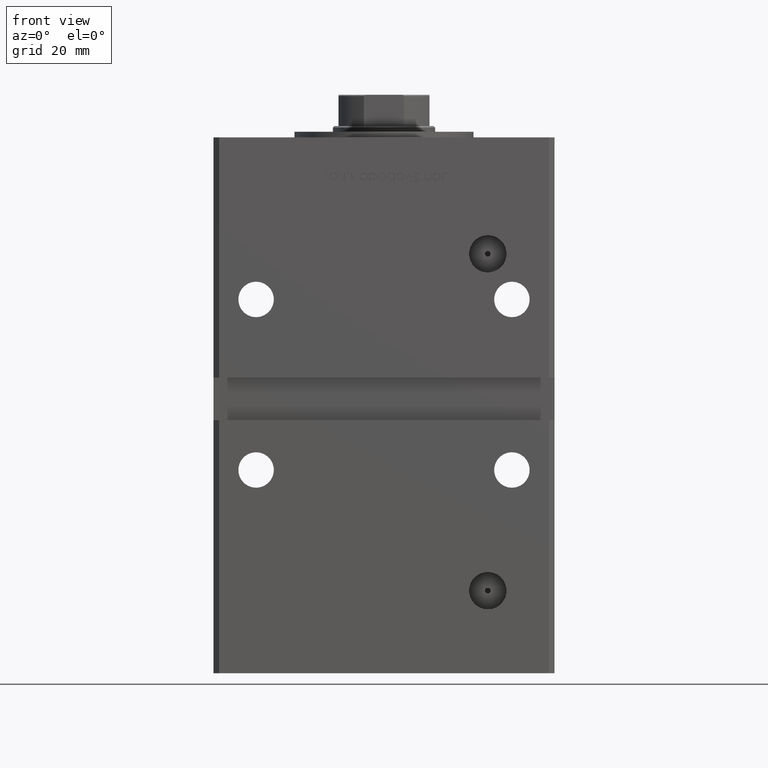
[diagram: clean part render]
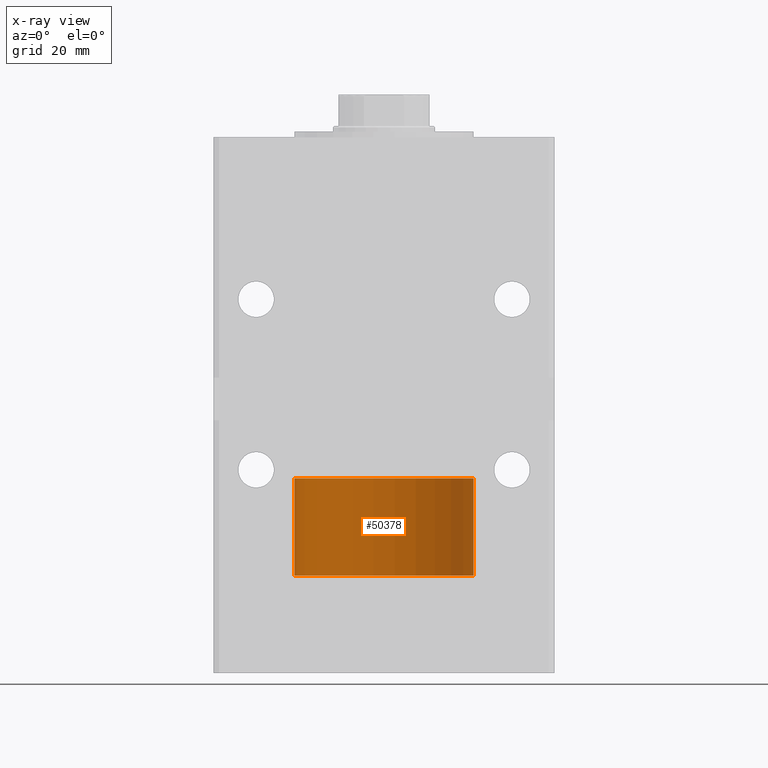
[diagram: x-ray — body ghosted, one internal face saturated and labeled with its STEP entity id]
A machine part, front view, then the same camera in x-ray: the body is ghosted and one INTERNAL B-rep face — a face not visible from any outside direction — is saturated and labeled: STEP entity #50378.
In plain terms, the highlighted cylindrical surface (partial cylindrical patch) has radius 31.5 mm, axis along (-0, -0, -1).
Its self-contained STEP definition (entity closure, byte-faithful):
#943 = VECTOR ( 'NONE', #27147, 1000.000000000000000 ) ;
#1446 = EDGE_LOOP ( 'NONE', ( #41794, #12210, #39696, #20834 ) ) ;
#2745 = FACE_OUTER_BOUND ( 'NONE', #1446, .T. ) ;
#5411 = AXIS2_PLACEMENT_3D ( 'NONE', #43479, #19099, #14290 ) ;
#7502 = CIRCLE ( 'NONE', #47704, 31.50000000000000000 ) ;
#9222 = AXIS2_PLACEMENT_3D ( 'NONE', #25931, #21902, #9831 ) ;
#9831 = DIRECTION ( 'NONE',  ( 1.000000000000000000, 0.000000000000000000, 0.000000000000000000 ) ) ;
#12210 = ORIENTED_EDGE ( 'NONE', *, *, #48377, .T. ) ;
#13575 = CARTESIAN_POINT ( 'NONE',  ( 31.50000000000000000, 3.857637417314162689E-15, 34.25000000000000000 ) ) ;
#14290 = DIRECTION ( 'NONE',  ( -1.000000000000000000, 0.000000000000000000, 0.000000000000000000 ) ) ;
#14426 = VERTEX_POINT ( 'NONE', #38563 ) ;
#19099 = DIRECTION ( 'NONE',  ( -0.000000000000000000, -0.000000000000000000, -1.000000000000000000 ) ) ;
#20834 = ORIENTED_EDGE ( 'NONE', *, *, #47893, .F. ) ;
#21902 = DIRECTION ( 'NONE',  ( 0.000000000000000000, 0.000000000000000000, 1.000000000000000000 ) ) ;
#25931 = CARTESIAN_POINT ( 'NONE',  ( 0.000000000000000000, 0.000000000000000000, 34.25000000000000000 ) ) ;
#27147 = DIRECTION ( 'NONE',  ( -0.000000000000000000, -0.000000000000000000, -1.000000000000000000 ) ) ;
#27414 = CARTESIAN_POINT ( 'NONE',  ( -31.50000000000000000, 0.000000000000000000, 34.25000000000000000 ) ) ;
#27648 = DIRECTION ( 'NONE',  ( 0.000000000000000000, 0.000000000000000000, 1.000000000000000000 ) ) ;
#32194 = DIRECTION ( 'NONE',  ( 1.000000000000000000, 0.000000000000000000, 0.000000000000000000 ) ) ;
#32237 = EDGE_CURVE ( 'NONE', #39741, #34747, #7502, .T. ) ;
#33681 = LINE ( 'NONE', #13575, #37794 ) ;
#33942 = DIRECTION ( 'NONE',  ( -0.000000000000000000, -0.000000000000000000, -1.000000000000000000 ) ) ;
#34055 = CIRCLE ( 'NONE', #9222, 31.50000000000000000 ) ;
#34147 = EDGE_CURVE ( 'NONE', #52225, #14426, #34055, .T. ) ;
#34747 = VERTEX_POINT ( 'NONE', #50648 ) ;
#35665 = CARTESIAN_POINT ( 'NONE',  ( 0.000000000000000000, 0.000000000000000000, 0.000000000000000000 ) ) ;
#36847 = CARTESIAN_POINT ( 'NONE',  ( 31.50000000000000000, 3.857637417314162689E-15, 34.25000000000000000 ) ) ;
#37794 = VECTOR ( 'NONE', #33942, 1000.000000000000000 ) ;
#38563 = CARTESIAN_POINT ( 'NONE',  ( -31.50000000000000000, 0.000000000000000000, 34.25000000000000000 ) ) ;
#39696 = ORIENTED_EDGE ( 'NONE', *, *, #32237, .T. ) ;
#39741 = VERTEX_POINT ( 'NONE', #52814 ) ;
#41794 = ORIENTED_EDGE ( 'NONE', *, *, #34147, .F. ) ;
#43479 = CARTESIAN_POINT ( 'NONE',  ( 0.000000000000000000, 0.000000000000000000, 34.25000000000000000 ) ) ;
#43485 = LINE ( 'NONE', #27414, #943 ) ;
#47704 = AXIS2_PLACEMENT_3D ( 'NONE', #35665, #27648, #32194 ) ;
#47893 = EDGE_CURVE ( 'NONE', #14426, #34747, #43485, .T. ) ;
#48377 = EDGE_CURVE ( 'NONE', #52225, #39741, #33681, .T. ) ;
#50378 = ADVANCED_FACE ( 'NONE', ( #2745 ), #50990, .T. ) ;
#50648 = CARTESIAN_POINT ( 'NONE',  ( -31.50000000000000000, 0.000000000000000000, 0.000000000000000000 ) ) ;
#50990 = CYLINDRICAL_SURFACE ( 'NONE', #5411, 31.50000000000000000 ) ;
#52225 = VERTEX_POINT ( 'NONE', #36847 ) ;
#52814 = CARTESIAN_POINT ( 'NONE',  ( 31.50000000000000000, 3.857637417314162689E-15, 0.000000000000000000 ) ) ;